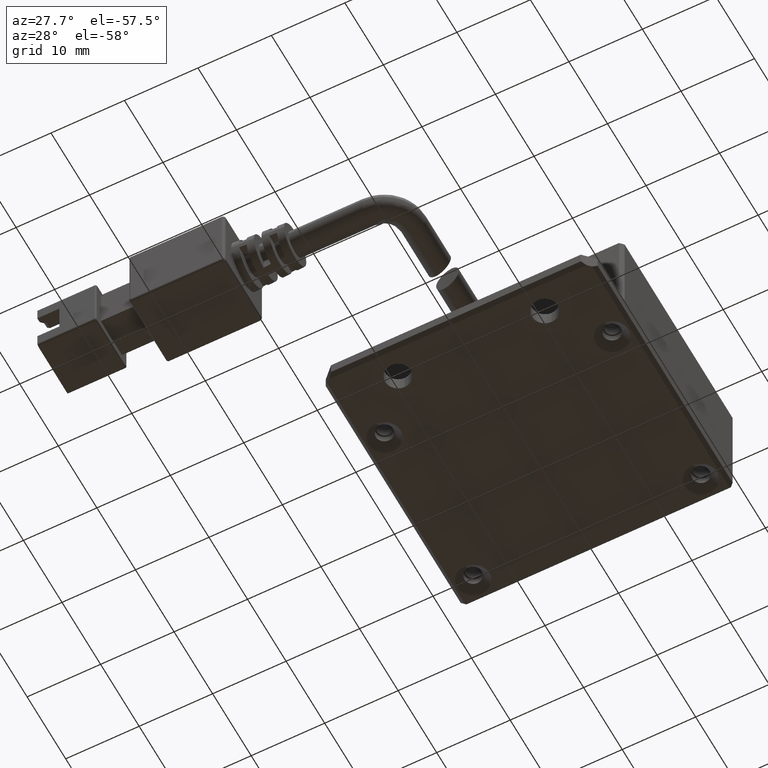
[diagram: clean part render]
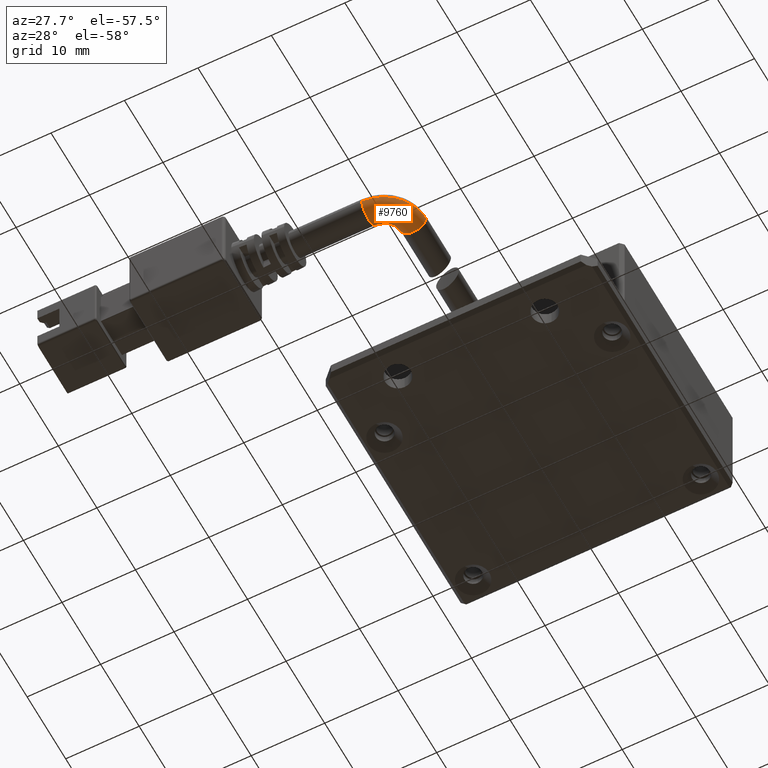
[diagram: same view with one face highlighted and labeled with its STEP entity id]
A machine part, auxiliary view. The second image highlights one B-rep face of the part: STEP entity #9760.
In plain terms, the highlighted face is a freeform B-spline surface patch.
Its self-contained STEP definition (entity closure, byte-faithful):
#437 = AXIS2_PLACEMENT_3D ( 'NONE', #15335, #3061, #17414 ) ;
#521 = CARTESIAN_POINT ( 'NONE',  ( 2.220599465444822700, -34.05364642993505000, 3.999999999983630400 ) ) ;
#730 = CARTESIAN_POINT ( 'NONE',  ( -3.529400534555177300, -36.30364642993504300, 0.4999999999836312000 ) ) ;
#842 = ORIENTED_EDGE ( 'NONE', *, *, #10871, .F. ) ;
#1526 = CIRCLE ( 'NONE', #5182, 2.249999999999995100 ) ;
#2268 = VERTEX_POINT ( 'NONE', #13743 ) ;
#2800 = CARTESIAN_POINT ( 'NONE',  ( -1.279400534555174000, -35.37166591459558900, 0.4999999999836311500 ) ) ;
#2811 = ORIENTED_EDGE ( 'NONE', *, *, #14287, .T. ) ;
#2939 = VERTEX_POINT ( 'NONE', #24573 ) ;
#3061 = DIRECTION ( 'NONE',  ( -1.000000000000000000, -6.162975822039154700E-033, -5.345529420184391300E-049 ) ) ;
#3187 = ORIENTED_EDGE ( 'NONE', *, *, #16391, .T. ) ;
#3247 = FACE_OUTER_BOUND ( 'NONE', #8839, .T. ) ;
#3463 = CIRCLE ( 'NONE', #437, 1.750000000000001600 ) ;
#4870 = CARTESIAN_POINT ( 'NONE',  ( -3.529400534555177300, -36.30364642993505000, 3.999999999983630400 ) ) ;
#5182 = AXIS2_PLACEMENT_3D ( 'NONE', #6350, #20707, #8436 ) ;
#6168 = CARTESIAN_POINT ( 'NONE',  ( 0.4705994654448236700, -34.05364642993505000, 3.999999999983630400 ) ) ;
#6350 = CARTESIAN_POINT ( 'NONE',  ( -3.529400534555176400, -34.05364642993505000, 3.999999999983630400 ) ) ;
#6844 = CARTESIAN_POINT ( 'NONE',  ( -0.1611285182004746400, -39.80364642993505000, 3.999999999983630900 ) ) ;
#6942 = CARTESIAN_POINT ( 'NONE',  ( -1.279400534555173800, -35.37166591459558200, 3.999999999983630900 ) ) ;
#7129 = DIRECTION ( 'NONE',  ( -5.345529420184392100E-049, 1.232595164407830900E-032, 1.000000000000000000 ) ) ;
#8252 = DIRECTION ( 'NONE',  ( 1.000000000000000000, 0.0000000000000000000, 0.0000000000000000000 ) ) ;
#8436 = DIRECTION ( 'NONE',  ( 0.0000000000000000000, 1.000000000000000000, 0.0000000000000000000 ) ) ;
#8731 = ORIENTED_EDGE ( 'NONE', *, *, #23345, .F. ) ;
#8839 = EDGE_LOOP ( 'NONE', ( #842, #2811, #3187, #20763, #8731 ) ) ;
#8900 = CARTESIAN_POINT ( 'NONE',  ( 2.220599465444825300, -34.05364642993505000, 3.999999999983630400 ) ) ;
#9360 = VERTEX_POINT ( 'NONE', #21905 ) ;
#9760 = ADVANCED_FACE ( 'NONE', ( #3247 ), #21171, .T. ) ;
#10107 = DIRECTION ( 'NONE',  ( -1.836970198721029700E-016, -1.000000000000000000, 1.232595164407830900E-032 ) ) ;
#10857 = CIRCLE ( 'NONE', #24660, 5.749999999999998200 ) ;
#10871 = EDGE_CURVE ( 'NONE', #9360, #2939, #3463, .T. ) ;
#10951 = CARTESIAN_POINT ( 'NONE',  ( -0.1611285182004746900, -39.80364642993505700, 0.4999999999836311500 ) ) ;
#13025 = CARTESIAN_POINT ( 'NONE',  ( 2.220599465444825300, -34.05364642993505000, 0.4999999999836312000 ) ) ;
#13099 = CIRCLE ( 'NONE', #16244, 1.749999999999999800 ) ;
#13743 = CARTESIAN_POINT ( 'NONE',  ( 0.4705994654448236700, -34.05364642993505000, 2.249999999983630000 ) ) ;
#14287 = EDGE_CURVE ( 'NONE', #9360, #24103, #1526, .T. ) ;
#15055 = CARTESIAN_POINT ( 'NONE',  ( -2.211381049894643800, -36.30364642993505000, 0.4999999999836311500 ) ) ;
#15335 = CARTESIAN_POINT ( 'NONE',  ( -3.529400534555176400, -38.05364642993505700, 3.999999999983630400 ) ) ;
#16244 = AXIS2_PLACEMENT_3D ( 'NONE', #6168, #20510, #8252 ) ;
#16391 = EDGE_CURVE ( 'NONE', #24103, #2268, #24086, .T. ) ;
#17120 = CARTESIAN_POINT ( 'NONE',  ( -1.279400534555178000, -34.05364642993504300, 0.4999999999836312000 ) ) ;
#17414 = DIRECTION ( 'NONE',  ( 0.0000000000000000000, -1.000000000000000000, 0.0000000000000000000 ) ) ;
#18492 = EDGE_CURVE ( 'NONE', #2268, #26332, #13099, .T. ) ;
#18529 = CARTESIAN_POINT ( 'NONE',  ( -1.279400534555176400, -34.05364642993505000, 3.999999999983630400 ) ) ;
#19209 = CARTESIAN_POINT ( 'NONE',  ( -2.211381049894643800, -36.30364642993505000, 3.999999999983630900 ) ) ;
#19378 = CARTESIAN_POINT ( 'NONE',  ( -3.529400534555176400, -34.05364642993505000, 3.999999999983630400 ) ) ;
#20293 = AXIS2_PLACEMENT_3D ( 'NONE', #22347, #10107, #24447 ) ;
#20510 = DIRECTION ( 'NONE',  ( -1.836970198721029700E-016, -1.000000000000000000, 1.232595164407830900E-032 ) ) ;
#20707 = DIRECTION ( 'NONE',  ( -5.345529420184392100E-049, 1.232595164407830900E-032, 1.000000000000000000 ) ) ;
#20763 = ORIENTED_EDGE ( 'NONE', *, *, #18492, .T. ) ;
#21089 = CARTESIAN_POINT ( 'NONE',  ( -3.529400534555177300, -39.80364642993505000, 3.999999999983630400 ) ) ;
#21171 =( BOUNDED_SURFACE ( )  B_SPLINE_SURFACE ( 3, 3, ( 
 ( #21089, #6844, #21190, #8900 ),
 ( #23260, #10951, #25316, #13025 ),
 ( #730, #15055, #2800, #17120 ),
 ( #4870, #19209, #6942, #21280 ) ),
 .UNSPECIFIED., .F., .F., .F. ) 
 B_SPLINE_SURFACE_WITH_KNOTS ( ( 4, 4 ),
 ( 4, 4 ),
 ( 0.0000000000000000000, 1.000000000000000000 ),
 ( 0.0000000000000000000, 1.000000000000000000 ),
 .UNSPECIFIED. ) 
 GEOMETRIC_REPRESENTATION_ITEM ( )  RATIONAL_B_SPLINE_SURFACE ( (
 ( 1.000000000000000000, 0.8047378541243649400, 0.8047378541243649400, 1.000000000000000000),
 ( 0.3333333333333333700, 0.2682459513747883500, 0.2682459513747883500, 0.3333333333333333700),
 ( 0.3333333333333333700, 0.2682459513747883500, 0.2682459513747883500, 0.3333333333333333700),
 ( 1.000000000000000000, 0.8047378541243649400, 0.8047378541243649400, 1.000000000000000000) ) ) 
 REPRESENTATION_ITEM ( '' )  SURFACE ( )  );
#21190 = CARTESIAN_POINT ( 'NONE',  ( 2.220599465444825300, -37.42191844628975200, 3.999999999983630900 ) ) ;
#21280 = CARTESIAN_POINT ( 'NONE',  ( -1.279400534555177800, -34.05364642993504300, 3.999999999983630400 ) ) ;
#21459 = DIRECTION ( 'NONE',  ( 0.0000000000000000000, 1.000000000000000000, 0.0000000000000000000 ) ) ;
#21905 = CARTESIAN_POINT ( 'NONE',  ( -3.529400534555176400, -36.30364642993505700, 3.999999999983630400 ) ) ;
#22347 = CARTESIAN_POINT ( 'NONE',  ( 0.4705994654448236700, -34.05364642993505000, 3.999999999983630400 ) ) ;
#23260 = CARTESIAN_POINT ( 'NONE',  ( -3.529400534555177300, -39.80364642993505700, 0.4999999999836312000 ) ) ;
#23345 = EDGE_CURVE ( 'NONE', #2939, #26332, #10857, .T. ) ;
#24086 = CIRCLE ( 'NONE', #20293, 1.749999999999999800 ) ;
#24103 = VERTEX_POINT ( 'NONE', #18529 ) ;
#24447 = DIRECTION ( 'NONE',  ( 1.000000000000000000, 0.0000000000000000000, 0.0000000000000000000 ) ) ;
#24573 = CARTESIAN_POINT ( 'NONE',  ( -3.529400534555176400, -39.80364642993505700, 3.999999999983630400 ) ) ;
#24660 = AXIS2_PLACEMENT_3D ( 'NONE', #19378, #7129, #21459 ) ;
#25316 = CARTESIAN_POINT ( 'NONE',  ( 2.220599465444824900, -37.42191844628975200, 0.4999999999836311500 ) ) ;
#26332 = VERTEX_POINT ( 'NONE', #521 ) ;